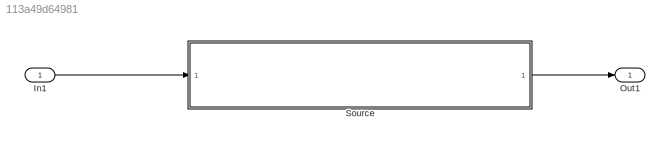
MODEL slx_113a49d64981
KIND model
CONFIG AbsTol = auto
CONFIG EnableMultiTasking = off
CONFIG FixedStep = auto
CONFIG MaxStep = auto
CONFIG MinStep = auto
CONFIG RelTol = 1e-3
CONFIG SampleTimeConstraint = Unconstrained
CONFIG Solver = VariableStepAuto
CONFIG SolverName = VariableStepAuto
CONFIG StartTime = 0.0
CONFIG StopTime = 10.0
WORKSPACE source: mxarray member
WORKSPACE InputValues_20210824T100641914 = [-5 -4.9375 -4.875 -4.8125 -4.75 -4.6875 -4.625 -4.5625 -4.5 -4.4375 -4.375 -4.3125 ... (161 elements, 161x1)]
BLOCK [Inport] In1
  OutDataTypeStr = fixdt(1,8,4)
BLOCK [Outport] Out1
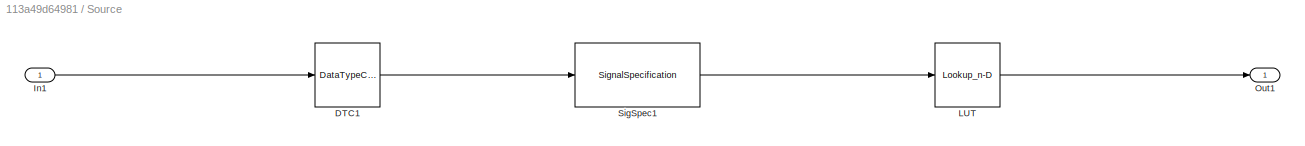
BLOCK [SubSystem] Source
  Description = This block was created using function approximation.
  Ports = [1, 1]
  RequestExecContextInheritance = off
BLOCK [DataTypeConversion] Source/DTC1
  RndMeth = Nearest
  SaturateOnIntegerOverflow = off
BLOCK [Inport] Source/In1
BLOCK [Lookup_n-D] Source/LUT
  BreakpointsForDimension1DataTypeStr = numerictype(1,8,4)
  BreakpointsForDimension1FirstPoint = -5
  BreakpointsForDimension1Spacing = 0.0625
  BreakpointsForDimension3 = [5, 7]
  BreakpointsSpecification = Even spacing
  ExtrapMethod = Clip
  IndexSearchMethod = Evenly spaced points
  InputSameDT = off
  InternalRulePriority = Speed
  InterpMethod = Flat
  LookupTableObject = FunctionApproximation_LUTObject_20210824T100641909
  NumberOfTableDimensions = 1
  OutDataTypeStr = numerictype(1,8,7)
  Ports = [1, 1]
  RndMeth = Simplest
  SaturateOnIntegerOverflow = on
  Table = [-1 -1 -1 -1 -1 -1 -1 -1 -1 -1 -1 -1 -1 -1 -1 -1 -1 -1 -1 -1 -1 -1 -1 -1 -1 -1 -1 -1 -1 -1 -1 -0.9921875 -0.9921875 -0.9921875 -0.9921875 -0.9921875 -0.9921875 -0.9921875 -0.9921875 -0.984375 -0.984375 -0.984375 -0.984375 -0.984375 -0.9765625 -0.9765625 -0.96875 -0.96875 -0.9609375 -0.9609375 -0.953125 -0.9453125 -0.9375 -0.9375 -0.921875 -0.9140625 -0.90625 -0.890625 -0.8828125 -0.8671875 -0.8515...<+935ch>
  TableDataTypeStr = numerictype(1,8,7)
  UseLastTableValue = on
BLOCK [Outport] Source/Out1
BLOCK [SignalSpecification] Source/SigSpec1
  OutDataTypeStr = numerictype(1,8,4)
  OutMax = 5
  OutMin = -5
LINE In1:1 -> Source:1
LINE Source/DTC1:1 -> Source/SigSpec1:1
LINE Source/In1:1 -> Source/DTC1:1
LINE Source/LUT:1 -> Source/Out1:1
LINE Source/SigSpec1:1 -> Source/LUT:1
LINE Source:1 -> Out1:1
